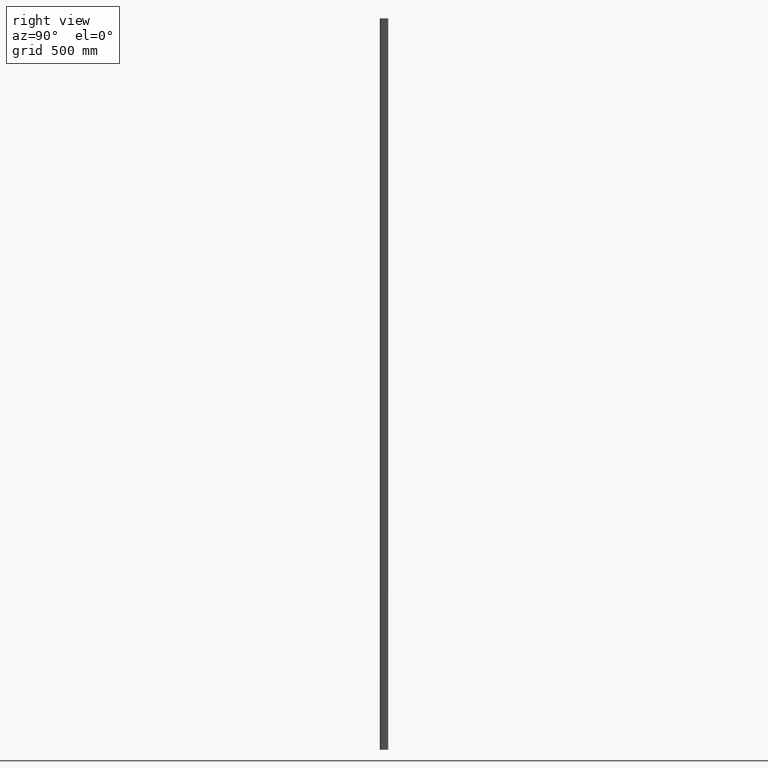
[diagram: clean part render]
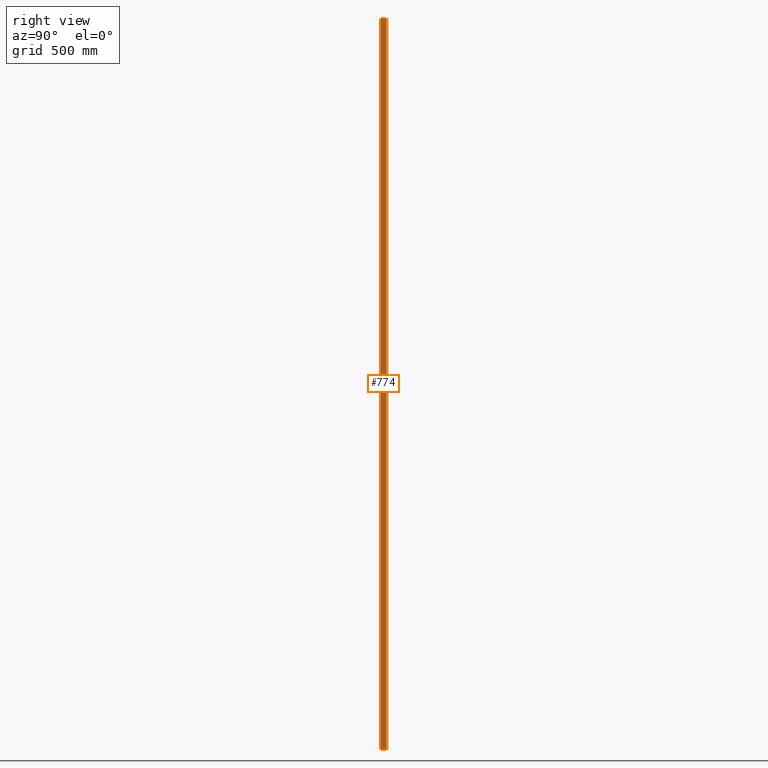
[diagram: same view with one face highlighted and labeled with its STEP entity id]
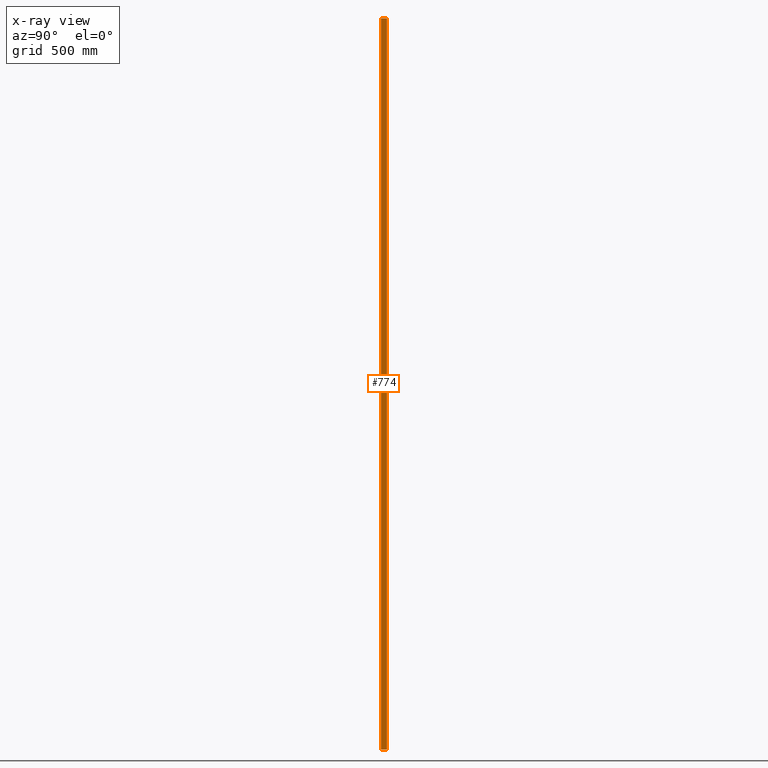
[diagram: x-ray of the same camera — body ghosted, the highlighted face saturated]
A machine part, right view. The second image highlights one B-rep face of the part: STEP entity #774.
The next image is the same camera in x-ray: the body ghosted, the highlighted face saturated — about 0% of this face is hidden behind the body in this view.
In plain terms, the highlighted planar face has unit normal (1, 0, -0).
Its self-contained STEP definition (entity closure, byte-faithful):
#34 = LINE ( 'NONE', #60, #239 ) ;
#60 = CARTESIAN_POINT ( 'NONE',  ( 1385.825919215657900, 457.3188036583253500, 3000.000000000000000 ) ) ;
#76 = LINE ( 'NONE', #77, #245 ) ;
#77 = CARTESIAN_POINT ( 'NONE',  ( 1385.825919215657900, 441.1357542965276400, 3000.000000000000000 ) ) ;
#83 = DIRECTION ( 'NONE',  ( 0.0000000000000000000, -1.000000000000000000, 0.0000000000000000000 ) ) ;
#91 = CARTESIAN_POINT ( 'NONE',  ( 1385.825919215657900, 441.1357542965276400, 0.0000000000000000000 ) ) ;
#92 = DIRECTION ( 'NONE',  ( 0.0000000000000000000, -1.000000000000000000, 0.0000000000000000000 ) ) ;
#101 = LINE ( 'NONE', #91, #274 ) ;
#109 = DIRECTION ( 'NONE',  ( -0.0000000000000000000, -0.0000000000000000000, -1.000000000000000000 ) ) ;
#124 = CARTESIAN_POINT ( 'NONE',  ( 1385.825919215657900, 480.9188036583252600, 0.0000000000000000000 ) ) ;
#143 = CARTESIAN_POINT ( 'NONE',  ( 1385.825919215657900, 480.9188036583252600, 3000.000000000000000 ) ) ;
#157 = CARTESIAN_POINT ( 'NONE',  ( 1385.825919215657900, 457.3188036583253500, 3000.000000000000000 ) ) ;
#161 = CARTESIAN_POINT ( 'NONE',  ( 1385.825919215657900, 457.3188036583253500, 0.0000000000000000000 ) ) ;
#179 = LINE ( 'NONE', #181, #268 ) ;
#181 = CARTESIAN_POINT ( 'NONE',  ( 1385.825919215657900, 480.9188036583252600, 3000.000000000000000 ) ) ;
#214 = DIRECTION ( 'NONE',  ( 0.0000000000000000000, 0.0000000000000000000, 1.000000000000000000 ) ) ;
#239 = VECTOR ( 'NONE', #109, 1000.000000000000000 ) ;
#245 = VECTOR ( 'NONE', #83, 1000.000000000000000 ) ;
#268 = VECTOR ( 'NONE', #214, 1000.000000000000000 ) ;
#274 = VECTOR ( 'NONE', #92, 1000.000000000000000 ) ;
#294 = CARTESIAN_POINT ( 'NONE',  ( 1385.825919215657900, 441.1357542965276400, 3000.000000000000000 ) ) ;
#303 = DIRECTION ( 'NONE',  ( -0.0000000000000000000, 0.0000000000000000000, -1.000000000000000000 ) ) ;
#310 = DIRECTION ( 'NONE',  ( 1.000000000000000000, 0.0000000000000000000, -0.0000000000000000000 ) ) ;
#311 = PLANE ( 'NONE',  #529 ) ;
#324 = FACE_OUTER_BOUND ( 'NONE', #674, .T. ) ;
#481 = EDGE_CURVE ( 'NONE', #683, #696, #179, .T. ) ;
#509 = EDGE_CURVE ( 'NONE', #715, #688, #34, .T. ) ;
#513 = EDGE_CURVE ( 'NONE', #696, #715, #76, .T. ) ;
#515 = EDGE_CURVE ( 'NONE', #683, #688, #101, .T. ) ;
#529 = AXIS2_PLACEMENT_3D ( 'NONE', #294, #310, #303 ) ;
#615 = ORIENTED_EDGE ( 'NONE', *, *, #515, .F. ) ;
#619 = ORIENTED_EDGE ( 'NONE', *, *, #513, .T. ) ;
#633 = ORIENTED_EDGE ( 'NONE', *, *, #509, .T. ) ;
#655 = ORIENTED_EDGE ( 'NONE', *, *, #481, .T. ) ;
#674 = EDGE_LOOP ( 'NONE', ( #619, #633, #615, #655 ) ) ;
#683 = VERTEX_POINT ( 'NONE', #124 ) ;
#688 = VERTEX_POINT ( 'NONE', #161 ) ;
#696 = VERTEX_POINT ( 'NONE', #143 ) ;
#715 = VERTEX_POINT ( 'NONE', #157 ) ;
#774 = ADVANCED_FACE ( 'NONE', ( #324 ), #311, .T. ) ;